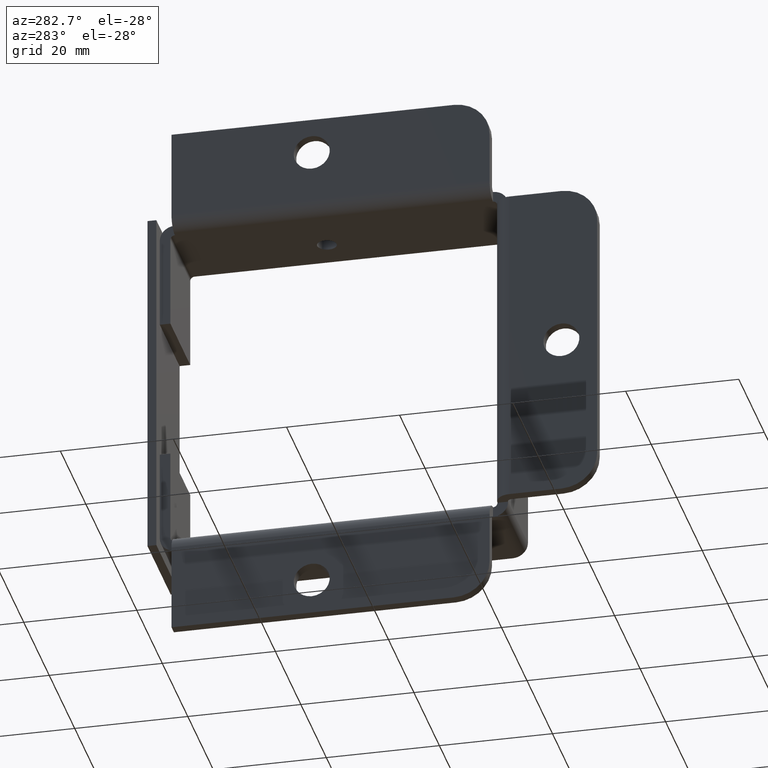
[diagram: clean part render]
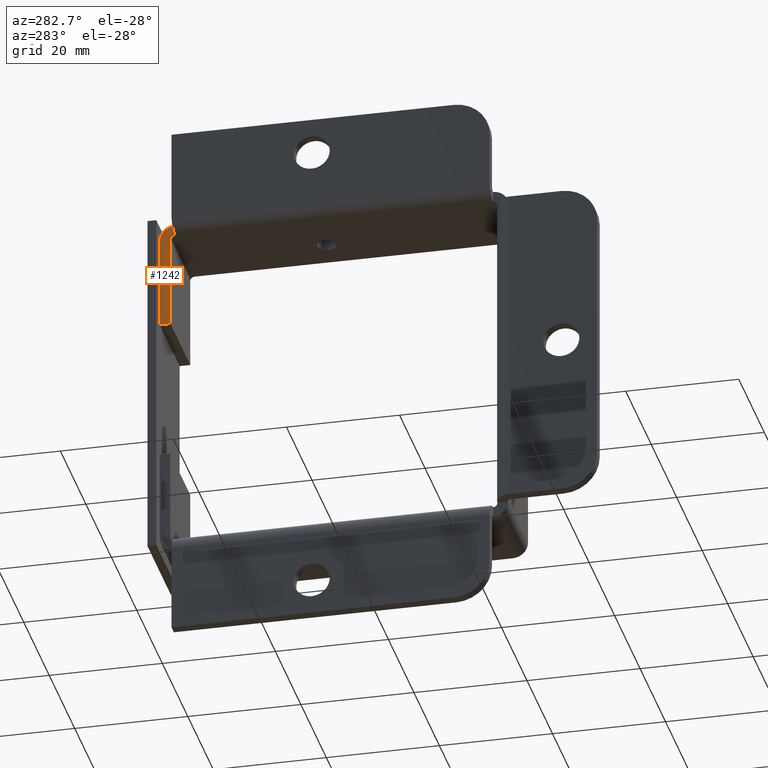
[diagram: same view with one face highlighted and labeled with its STEP entity id]
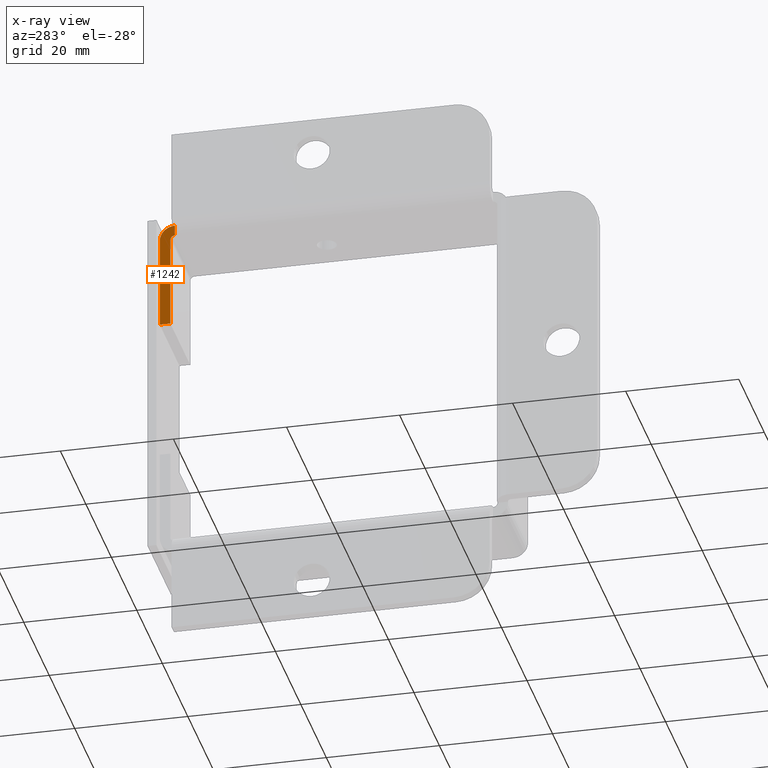
[diagram: x-ray of the same camera — body ghosted, the highlighted face saturated]
A machine part, auxiliary view. The second image highlights one B-rep face of the part: STEP entity #1242.
The next image is the same camera in x-ray: the body ghosted, the highlighted face saturated — about 0% of this face is hidden behind the body in this view.
In plain terms, the highlighted planar face has unit normal (1, -0, 0).
Its self-contained STEP definition (entity closure, byte-faithful):
#75=CIRCLE('',#1354,0.10525);
#76=CIRCLE('',#1355,0.0312500000000001);
#156=FACE_OUTER_BOUND('',#244,.T.);
#244=EDGE_LOOP('',(#921,#922,#923,#924,#925,#926));
#292=LINE('',#1795,#402);
#296=LINE('',#1803,#406);
#330=LINE('',#1924,#440);
#351=LINE('',#1987,#461);
#402=VECTOR('',#1423,0.074);
#406=VECTOR('',#1429,0.644749999999999);
#440=VECTOR('',#1547,0.074);
#461=VECTOR('',#1626,0.64475);
#511=VERTEX_POINT('',#1793);
#512=VERTEX_POINT('',#1794);
#515=VERTEX_POINT('',#1802);
#558=VERTEX_POINT('',#1915);
#560=VERTEX_POINT('',#1922);
#573=VERTEX_POINT('',#1986);
#604=EDGE_CURVE('',#511,#512,#292,.T.);
#608=EDGE_CURVE('',#512,#515,#296,.T.);
#665=EDGE_CURVE('',#560,#558,#330,.T.);
#695=EDGE_CURVE('',#515,#560,#75,.T.);
#696=EDGE_CURVE('',#573,#511,#351,.T.);
#697=EDGE_CURVE('',#558,#573,#76,.T.);
#921=ORIENTED_EDGE('',*,*,#695,.F.);
#922=ORIENTED_EDGE('',*,*,#608,.F.);
#923=ORIENTED_EDGE('',*,*,#604,.F.);
#924=ORIENTED_EDGE('',*,*,#696,.F.);
#925=ORIENTED_EDGE('',*,*,#697,.F.);
#926=ORIENTED_EDGE('',*,*,#665,.F.);
#1096=PLANE('',#1353);
#1242=ADVANCED_FACE('',(#156),#1096,.F.);
#1353=AXIS2_PLACEMENT_3D('',#1984,#1622,#1623);
#1354=AXIS2_PLACEMENT_3D('',#1985,#1624,#1625);
#1355=AXIS2_PLACEMENT_3D('',#1988,#1627,#1628);
#1423=DIRECTION('',(-7.56966458204388E-31,1.,-1.71512449944288E-15));
#1429=DIRECTION('',(6.77930483111722E-17,1.71719615558728E-15,1.));
#1547=DIRECTION('',(0.,0.,-1.));
#1622=DIRECTION('center_axis',(1.,-3.51292837601919E-16,4.82846536945427E-17));
#1623=DIRECTION('ref_axis',(0.,0.,-1.));
#1624=DIRECTION('center_axis',(1.,-3.51292837601919E-16,4.82846536945427E-17));
#1625=DIRECTION('ref_axis',(0.,0.,1.));
#1626=DIRECTION('',(-6.77930483111722E-17,-1.71719615558728E-15,-1.));
#1627=DIRECTION('center_axis',(-1.,3.51292837601919E-16,-4.82846536945427E-17));
#1628=DIRECTION('ref_axis',(0.,0.,1.));
#1793=CARTESIAN_POINT('',(-0.291125,1.13899999999999,-0.676));
#1794=CARTESIAN_POINT('',(-0.291125,1.21299999999999,-0.676));
#1795=CARTESIAN_POINT('',(-0.291125,1.17599999999999,-0.676));
#1802=CARTESIAN_POINT('',(-0.291125,1.213,-0.0312500000000003));
#1803=CARTESIAN_POINT('',(-0.291125,1.213,-0.496641528091637));
#1915=CARTESIAN_POINT('',(-0.291125,1.10775,-2.18547839493141E-17));
#1922=CARTESIAN_POINT('',(-0.291125,1.10775,0.074));
#1924=CARTESIAN_POINT('',(-0.291125,1.10775,0.074));
#1984=CARTESIAN_POINT('Origin',(-0.291125,1.15423531959026,0.0152353195902631));
#1985=CARTESIAN_POINT('Origin',(-0.291125,1.10775,-0.0312500000000001));
#1986=CARTESIAN_POINT('',(-0.291125,1.139,-0.0312500000000001));
#1987=CARTESIAN_POINT('',(-0.291125,1.139,-0.496641528091636));
#1988=CARTESIAN_POINT('Origin',(-0.291125,1.10775,-0.0312500000000001));